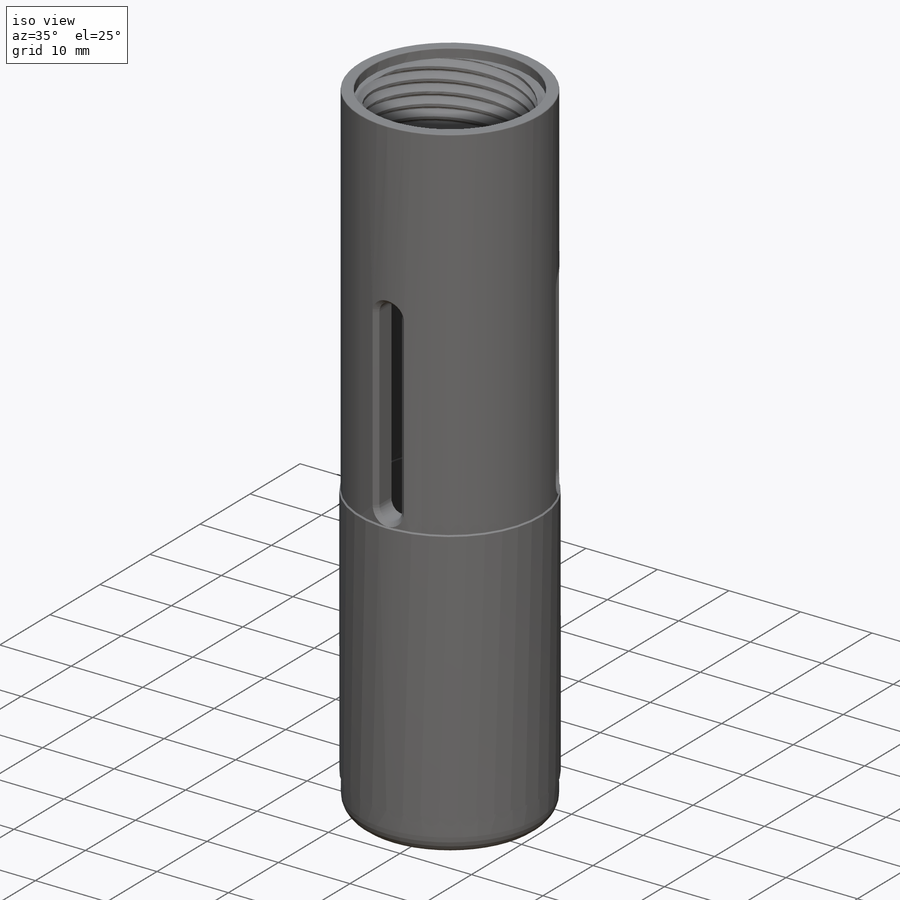
[diagram: iso view]
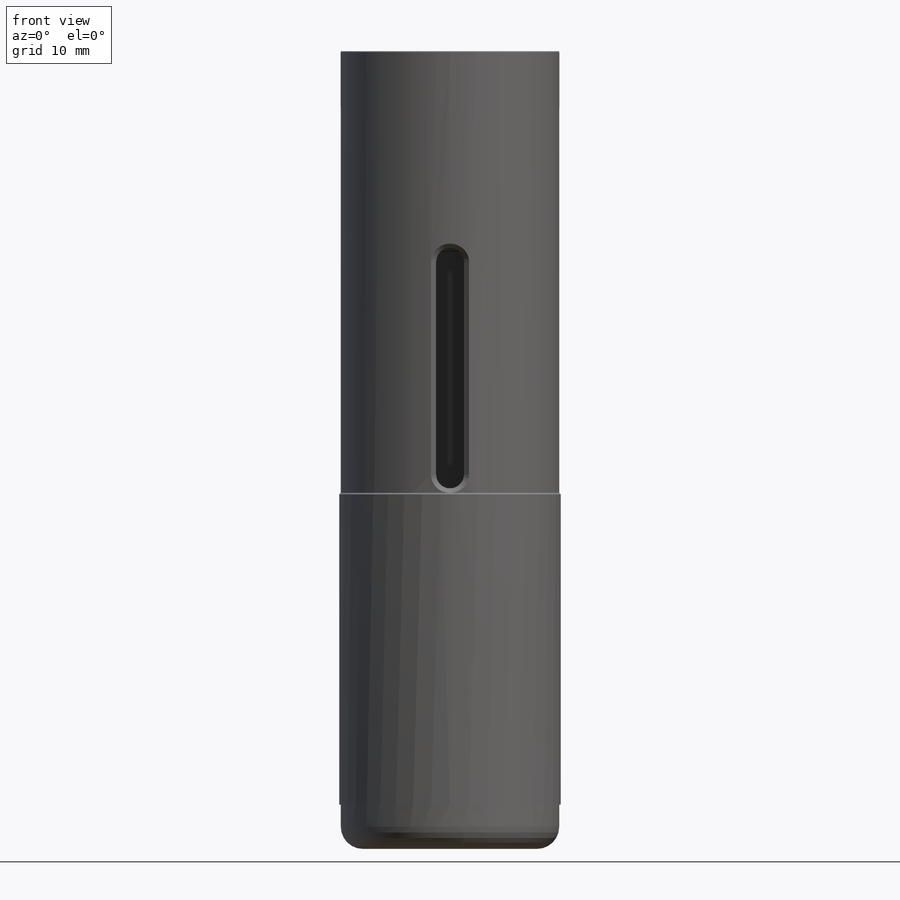
[diagram: front view]
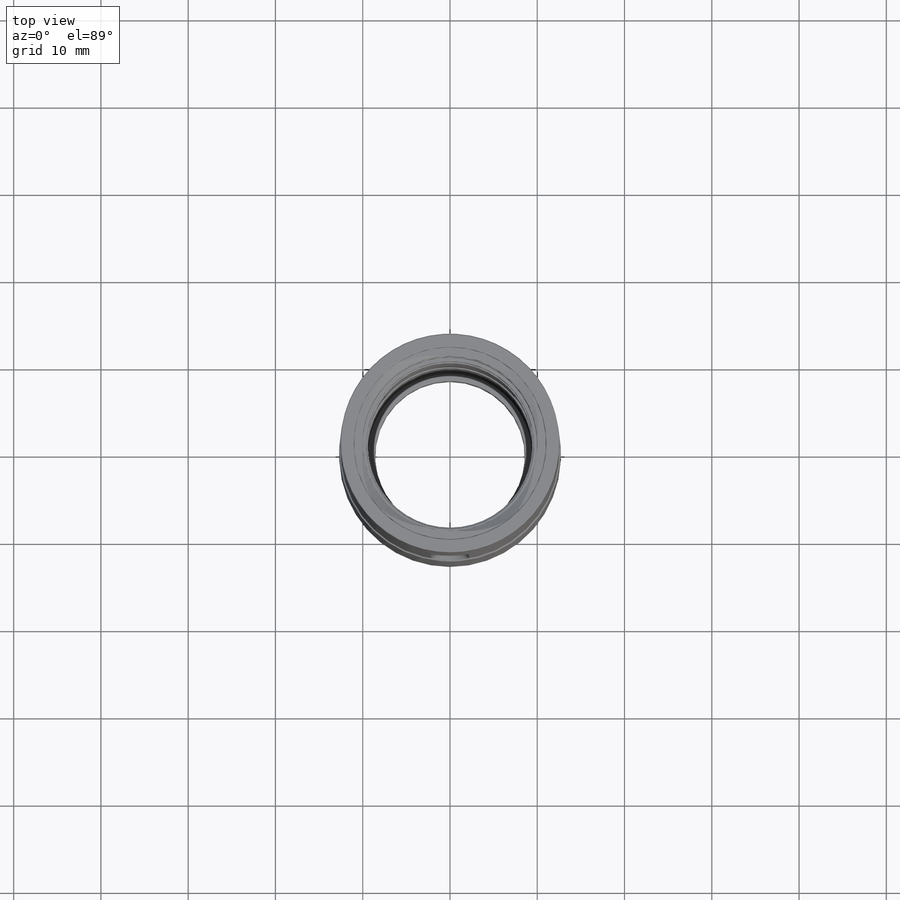
[diagram: top view]
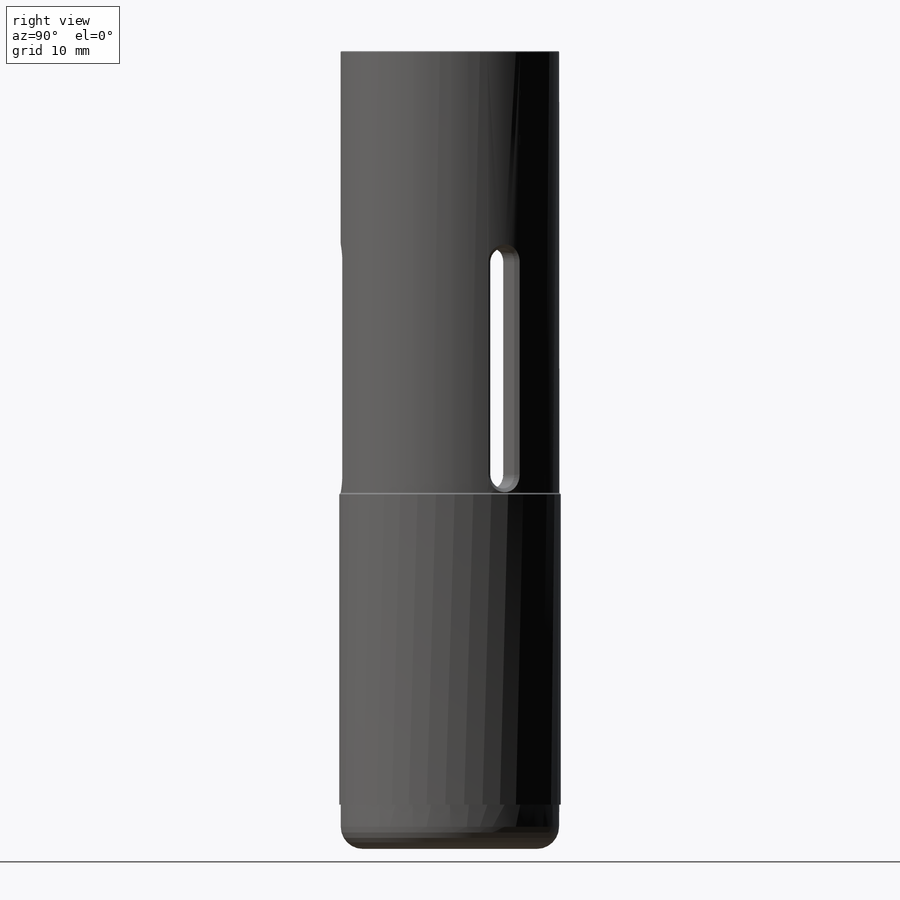
[diagram: right view]
SOLIDWORKS PART (.sldprt)
format: sldprt  version: not decoded by parser v0  size: 1,166,336 bytes
history: native  units: mm
features: sketch x13, cut_extrude x9, chamfer x3, extrude x2, fillet x2, pattern_circular x2, material x1, plane x1, helix x1, sweep x1 (+13 scaffold rows collapsed)
feature tree (48):
  scaffold x13  (default folders/planes/origin — collapsed)
  material  "Material <not specified>"
  sketch  "Sketch2"  dims[D1=~15.315482mm]
  extrude  "Extrude2"  Depth=91.44mm
  sketch  "Sketch3"  dims[D1=~10.560809mm]
  cut_extrude  "Cut-Extrude1"  Depth=50.8mm
  sketch  "Sketch4"  dims[D1=~6.344028mm]
  cut_extrude  "Cut-Extrude2"  Depth=1.27mm
  sketch  "Sketch5"  dims[D1=~6.866379mm]
  cut_extrude  "Cut-Extrude3"  Depth=11.684mm
  sketch  "Sketch6"  dims[D1=~5.034454mm]
  cut_extrude  "Cut-Extrude4"  Depth=2.794mm
  sketch  "Sketch7"  dims[D1=~5.685826mm]
  cut_extrude  "Cut-Extrude5"  Depth=7.239mm
  sketch  "Sketch8"  dims[D1=~5.110964mm]
  cut_extrude  "Cut-Extrude6"  Depth=27.305mm
  sketch  "Sketch9"  dims[D1=~4.254343mm]
  cut_extrude  "Cut-Extrude7"  Depth=34.29mm
  chamfer  "Chamfer1"  Distance=0.508mm Angle=45deg
  sketch  "Sketch10"  dims[D1=~6.018096mm]
  cut_extrude  "Cut-Extrude8"  Depth=5.08mm
  fillet  "Fillet2"  Radius=2.54mm
  plane  "Plane1"  Offset=12.7mm
  sketch  "Sketch11"  dims[D1=24.384mm]
  cut_extrude  "Cut-Extrude9"  Depth=5.08mm
  pattern_circular  "CirPattern1"  Count=3 Angle=360deg
  chamfer  "Chamfer2"  Distance=0.508mm Angle=45deg
  chamfer  "Chamfer3"  Distance=0.1651mm Angle=45deg
  sketch  "Sketch13"  dims[c1.D1=~1.282894mm c2.D1=60.0deg c2.D2=~1.150211mm c3.D2=120.0deg c3.D1=~1.757065mm c4.D1=60.0deg c4.D2=~1.521663mm c5.D2=60.0deg c5.D3=9.525mm]
  sketch  "Sketch14"
  helix  "Helix/Spiral1"  Pitch=11.1125mm
  sweep  "Cut-Sweep2"
  pattern_circular  "CirPattern2"  Count=4 Angle=360deg
  sketch  "Sketch15"
  extrude  "Extrude3"  Depth=35.56mm
  fillet  "Fillet3"  Radius=0.127mm
decode coverage: 30 of 33 modeling features carry decoded parameters
note: ~ marks probable driven/reference dimensions
note: suppression state not decoded; provenance and decode notes live in map.json
